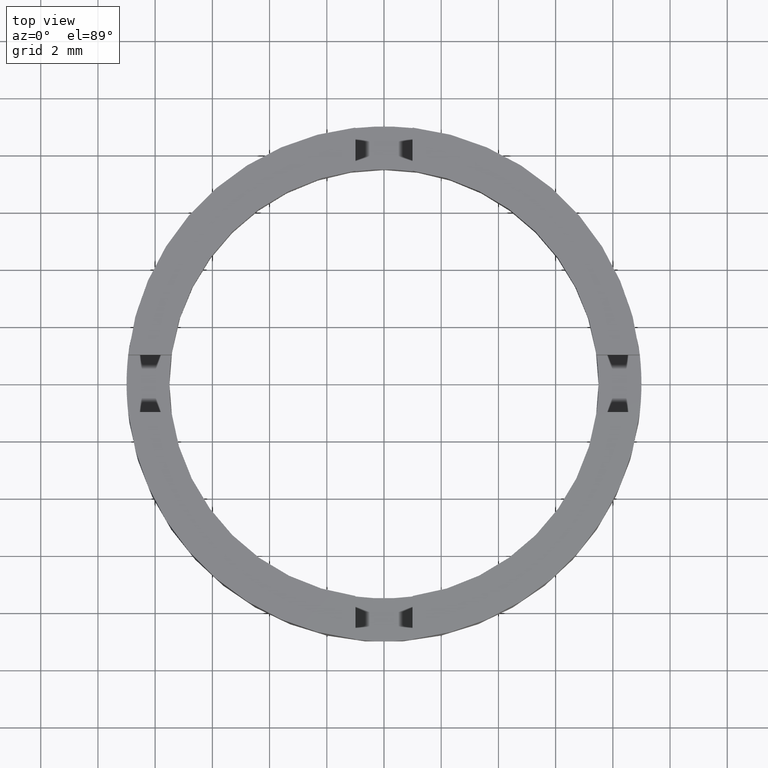
[diagram: clean part render]
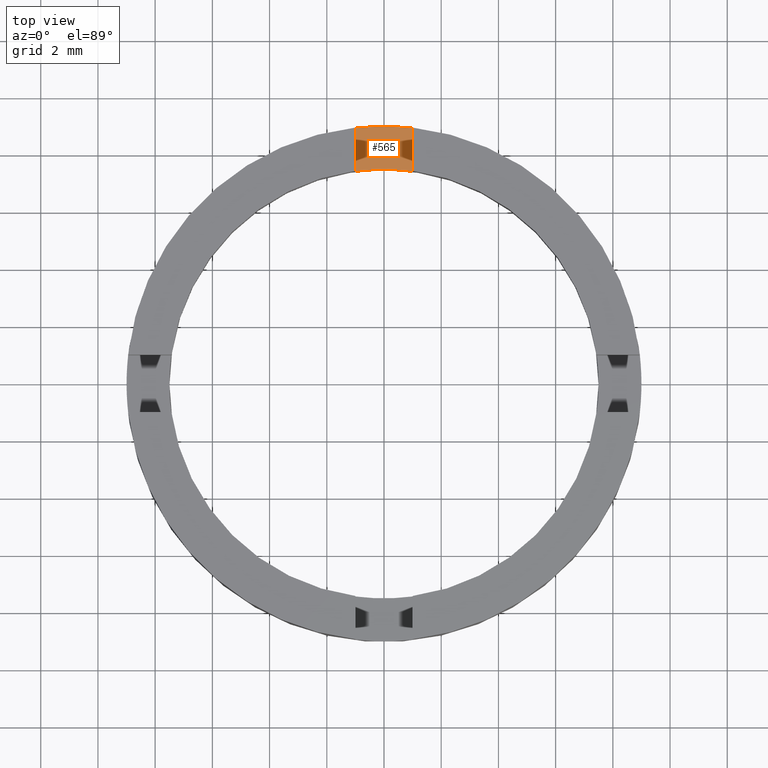
[diagram: same view with one face highlighted and labeled with its STEP entity id]
A machine part, top view. The second image highlights one B-rep face of the part: STEP entity #565.
In plain terms, the highlighted planar face has unit normal (-0, 0, 1).
Its self-contained STEP definition (entity closure, byte-faithful):
#20 = VERTEX_POINT ( 'NONE', #443 ) ;
#46 = LINE ( 'NONE', #128, #575 ) ;
#76 = LINE ( 'NONE', #457, #611 ) ;
#128 = CARTESIAN_POINT ( 'NONE',  ( 1.000000000000001332, 0.000000000000000000, 1.500000000000000000 ) ) ;
#129 = ORIENTED_EDGE ( 'NONE', *, *, #536, .T. ) ;
#135 = EDGE_CURVE ( 'NONE', #773, #545, #322, .T. ) ;
#146 = CARTESIAN_POINT ( 'NONE',  ( 0.000000000000000000, 0.000000000000000000, 1.500000000000000000 ) ) ;
#199 = AXIS2_PLACEMENT_3D ( 'NONE', #146, #517, #727 ) ;
#200 = EDGE_CURVE ( 'NONE', #432, #773, #46, .T. ) ;
#207 = DIRECTION ( 'NONE',  ( 0.000000000000000000, -0.000000000000000000, -1.000000000000000000 ) ) ;
#235 = DIRECTION ( 'NONE',  ( 1.000000000000000000, 0.000000000000000000, 0.000000000000000000 ) ) ;
#237 = DIRECTION ( 'NONE',  ( 0.000000000000000000, 1.000000000000000000, -0.000000000000000000 ) ) ;
#251 = PLANE ( 'NONE',  #199 ) ;
#258 = EDGE_LOOP ( 'NONE', ( #264, #129, #641, #375 ) ) ;
#264 = ORIENTED_EDGE ( 'NONE', *, *, #492, .F. ) ;
#265 = DIRECTION ( 'NONE',  ( 1.000000000000000000, 4.440892098500626162E-15, 0.000000000000000000 ) ) ;
#322 = CIRCLE ( 'NONE', #586, 9.000000000000000000 ) ;
#343 = CARTESIAN_POINT ( 'NONE',  ( -0.9999999999999986677, 8.944271909999157444, 1.500000000000000000 ) ) ;
#351 = FACE_OUTER_BOUND ( 'NONE', #258, .T. ) ;
#357 = CIRCLE ( 'NONE', #700, 7.500000000000000000 ) ;
#375 = ORIENTED_EDGE ( 'NONE', *, *, #135, .T. ) ;
#432 = VERTEX_POINT ( 'NONE', #509 ) ;
#443 = CARTESIAN_POINT ( 'NONE',  ( -0.9999999999999986677, 7.433034373659253013, 1.500000000000000000 ) ) ;
#457 = CARTESIAN_POINT ( 'NONE',  ( -0.9999999999999986677, 0.000000000000000000, 1.500000000000000000 ) ) ;
#463 = DIRECTION ( 'NONE',  ( 0.000000000000000000, 1.000000000000000000, -0.000000000000000000 ) ) ;
#492 = EDGE_CURVE ( 'NONE', #20, #545, #76, .T. ) ;
#494 = DIRECTION ( 'NONE',  ( -0.000000000000000000, 0.000000000000000000, 1.000000000000000000 ) ) ;
#503 = CARTESIAN_POINT ( 'NONE',  ( 0.000000000000000000, 0.000000000000000000, 1.500000000000000000 ) ) ;
#509 = CARTESIAN_POINT ( 'NONE',  ( 1.000000000000001332, 7.433034373659253013, 1.500000000000000000 ) ) ;
#517 = DIRECTION ( 'NONE',  ( -0.000000000000000000, 0.000000000000000000, 1.000000000000000000 ) ) ;
#536 = EDGE_CURVE ( 'NONE', #20, #432, #357, .T. ) ;
#545 = VERTEX_POINT ( 'NONE', #343 ) ;
#565 = ADVANCED_FACE ( 'NONE', ( #351 ), #251, .T. ) ;
#575 = VECTOR ( 'NONE', #237, 1000.000000000000000 ) ;
#586 = AXIS2_PLACEMENT_3D ( 'NONE', #503, #494, #235 ) ;
#611 = VECTOR ( 'NONE', #463, 1000.000000000000000 ) ;
#641 = ORIENTED_EDGE ( 'NONE', *, *, #200, .T. ) ;
#700 = AXIS2_PLACEMENT_3D ( 'NONE', #720, #207, #265 ) ;
#720 = CARTESIAN_POINT ( 'NONE',  ( 0.000000000000000000, 0.000000000000000000, 1.500000000000000000 ) ) ;
#727 = DIRECTION ( 'NONE',  ( 1.000000000000000000, 0.000000000000000000, 0.000000000000000000 ) ) ;
#732 = CARTESIAN_POINT ( 'NONE',  ( 1.000000000000001332, 8.944271909999157444, 1.500000000000000000 ) ) ;
#773 = VERTEX_POINT ( 'NONE', #732 ) ;